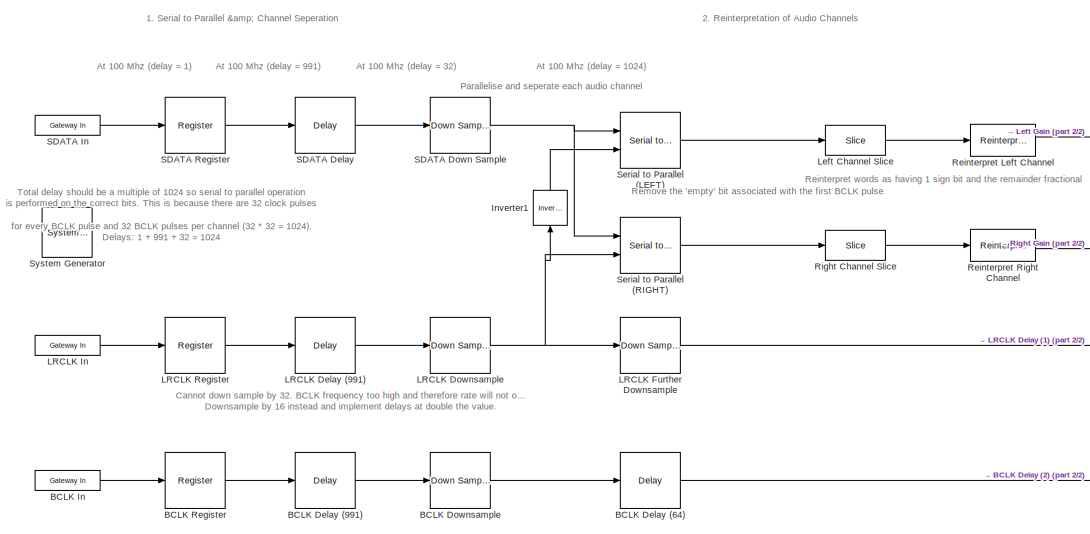
[diagram: root canvas - part 1/2, left side, full height]
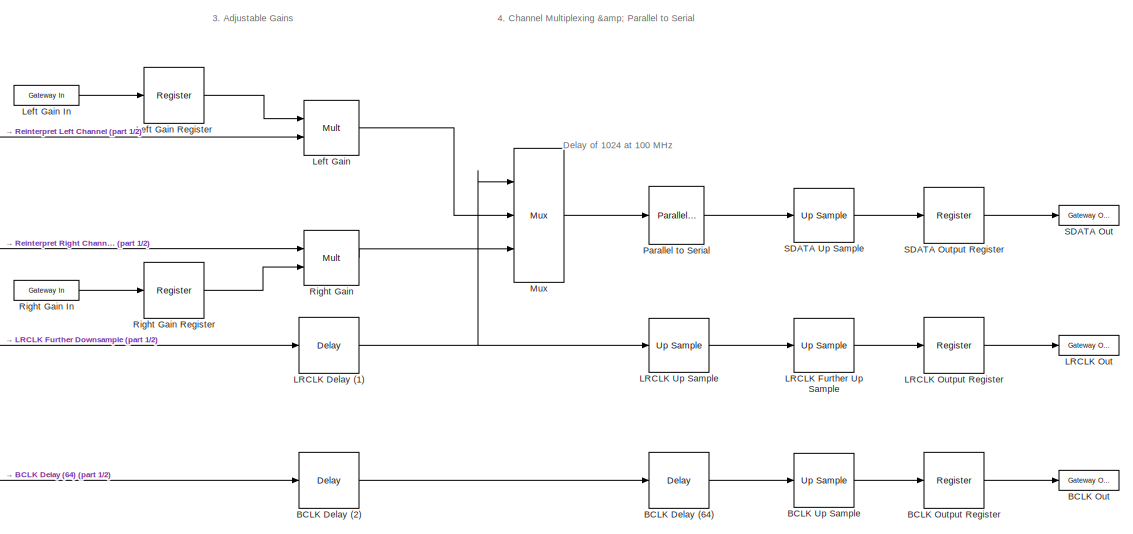
[diagram: root canvas - part 2/2, right side, full height]
MODEL slx_e5e542378b1a
KIND model
CONFIG AbsTol = auto
CONFIG EnableMultiTasking = off
CONFIG FixedStep = auto
CONFIG MaxStep = auto
CONFIG MinStep = auto
CONFIG RelTol = 1e-3
CONFIG SampleTimeConstraint = Unconstrained
CONFIG Solver = VariableStepAuto
CONFIG SolverName = VariableStepAuto
CONFIG StartTime = 0.0
CONFIG StopTime = 32000/100e6
BLOCK [Reference]  System Generator  REF=xbsIndex_r4/ System Generator
  AttributesFormatString = System\nGenerator
  Ports = []
  SourceBlock = xbsIndex_r4/ System Generator
  SourceType = Xilinx System Generator Block
  Tag = genX
  UserDataPersistent = on
BLOCK [Reference] BCLK Delay (2)  REF=xbsIndex_r4/Delay
  Ports = [1, 1]
  SourceBlock = xbsIndex_r4/Delay
  SourceType = Xilinx Delay Block
BLOCK [Reference] BCLK Delay (64)  REF=xbsIndex_r4/Delay
  Ports = [1, 1]
  SourceBlock = xbsIndex_r4/Delay
  SourceType = Xilinx Delay Block
BLOCK [Reference] BCLK Delay (64)   REF=xbsIndex_r4/Delay
  Ports = [1, 1]
  SourceBlock = xbsIndex_r4/Delay
  SourceType = Xilinx Delay Block
BLOCK [Reference] BCLK Delay (991)  REF=xbsIndex_r4/Delay
  Ports = [1, 1]
  SourceBlock = xbsIndex_r4/Delay
  SourceType = Xilinx Delay Block
BLOCK [Reference] BCLK Downsample  REF=xbsIndex_r4/Down Sample
  Ports = [1, 1]
  SourceBlock = xbsIndex_r4/Down Sample
  SourceType = Xilinx Down Sampler Block
BLOCK [Reference] BCLK In  REF=xbsIndex_r4/Gateway In
  Ports = [1, 1]
  SourceBlock = xbsIndex_r4/Gateway In
  SourceType = Xilinx Gateway In Block
BLOCK [Reference] BCLK Out  REF=xbsIndex_r4/Gateway Out
  Ports = [1, 1]
  SourceBlock = xbsIndex_r4/Gateway Out
  SourceType = Xilinx Gateway Out Block
BLOCK [Reference] BCLK Output Register  REF=xbsIndex_r4/Register
  Ports = [1, 1]
  SourceBlock = xbsIndex_r4/Register
  SourceType = Xilinx Register Block
BLOCK [Reference] BCLK Register  REF=xbsIndex_r4/Register
  Ports = [1, 1]
  SourceBlock = xbsIndex_r4/Register
  SourceType = Xilinx Register Block
BLOCK [Reference] BCLK Up Sample  REF=xbsIndex_r4/Up Sample
  Ports = [1, 1]
  SourceBlock = xbsIndex_r4/Up Sample
  SourceType = Xilinx Up Sampler Block
BLOCK [Reference] Inverter1  REF=xbsIndex_r4/Inverter
  NameLocation = right
  Ports = [1, 1]
  SourceBlock = xbsIndex_r4/Inverter
  SourceType = Xilinx Inverter Block
BLOCK [Reference] LRCLK Delay (1)  REF=xbsIndex_r4/Delay
  Ports = [1, 1]
  SourceBlock = xbsIndex_r4/Delay
  SourceType = Xilinx Delay Block
BLOCK [Reference] LRCLK Delay (991)  REF=xbsIndex_r4/Delay
  Ports = [1, 1]
  SourceBlock = xbsIndex_r4/Delay
  SourceType = Xilinx Delay Block
BLOCK [Reference] LRCLK Downsample  REF=xbsIndex_r4/Down Sample
  Ports = [1, 1]
  SourceBlock = xbsIndex_r4/Down Sample
  SourceType = Xilinx Down Sampler Block
BLOCK [Reference] LRCLK Further Downsample  REF=xbsIndex_r4/Down Sample
  Ports = [1, 1]
  SourceBlock = xbsIndex_r4/Down Sample
  SourceType = Xilinx Down Sampler Block
BLOCK [Reference] LRCLK Further Up Sample  REF=xbsIndex_r4/Up Sample
  Ports = [1, 1]
  SourceBlock = xbsIndex_r4/Up Sample
  SourceType = Xilinx Up Sampler Block
BLOCK [Reference] LRCLK In  REF=xbsIndex_r4/Gateway In
  Ports = [1, 1]
  SourceBlock = xbsIndex_r4/Gateway In
  SourceType = Xilinx Gateway In Block
BLOCK [Reference] LRCLK Out  REF=xbsIndex_r4/Gateway Out
  Ports = [1, 1]
  SourceBlock = xbsIndex_r4/Gateway Out
  SourceType = Xilinx Gateway Out Block
BLOCK [Reference] LRCLK Output Register  REF=xbsIndex_r4/Register
  Ports = [1, 1]
  SourceBlock = xbsIndex_r4/Register
  SourceType = Xilinx Register Block
BLOCK [Reference] LRCLK Register  REF=xbsIndex_r4/Register
  Ports = [1, 1]
  SourceBlock = xbsIndex_r4/Register
  SourceType = Xilinx Register Block
BLOCK [Reference] LRCLK Up Sample  REF=xbsIndex_r4/Up Sample
  Ports = [1, 1]
  SourceBlock = xbsIndex_r4/Up Sample
  SourceType = Xilinx Up Sampler Block
BLOCK [Reference] Left Channel Slice  REF=xbsIndex_r4/Slice
  Ports = [1, 1]
  SourceBlock = xbsIndex_r4/Slice
  SourceType = Xilinx Bit Slice Extractor Block
BLOCK [Reference] Left Gain  REF=xbsIndex_r4/Mult
  Ports = [2, 1]
  SourceBlock = xbsIndex_r4/Mult
  SourceType = Xilinx Multiplier Block
BLOCK [Reference] Left Gain In  REF=xbsIndex_r4/Gateway In
  Ports = [1, 1]
  SourceBlock = xbsIndex_r4/Gateway In
  SourceType = Xilinx Gateway In Block
BLOCK [Reference] Left Gain Register  REF=xbsIndex_r4/Register
  Ports = [1, 1]
  SourceBlock = xbsIndex_r4/Register
  SourceType = Xilinx Register Block
BLOCK [Reference] Mux  REF=xbsIndex_r4/Mux
  Ports = [3, 1]
  SourceBlock = xbsIndex_r4/Mux
  SourceType = Xilinx Bus Multiplexer Block
BLOCK [Reference] Parallel to Serial  REF=xbsIndex_r4/Parallel to Serial
  Ports = [1, 1]
  SourceBlock = xbsIndex_r4/Parallel to Serial
  SourceType = Xilinx Parallel to Serial Converter Block
BLOCK [Reference] Reinterpret Left Channel  REF=xbsIndex_r4/Reinterpret
  Ports = [1, 1]
  SourceBlock = xbsIndex_r4/Reinterpret
  SourceType = Xilinx Type Reinterpreter Block
BLOCK [Reference] Reinterpret Right Channel  REF=xbsIndex_r4/Reinterpret
  Ports = [1, 1]
  SourceBlock = xbsIndex_r4/Reinterpret
  SourceType = Xilinx Type Reinterpreter Block
BLOCK [Reference] Right Channel Slice  REF=xbsIndex_r4/Slice
  Ports = [1, 1]
  SourceBlock = xbsIndex_r4/Slice
  SourceType = Xilinx Bit Slice Extractor Block
BLOCK [Reference] Right Gain  REF=xbsIndex_r4/Mult
  Ports = [2, 1]
  SourceBlock = xbsIndex_r4/Mult
  SourceType = Xilinx Multiplier Block
BLOCK [Reference] Right Gain In  REF=xbsIndex_r4/Gateway In
  Ports = [1, 1]
  SourceBlock = xbsIndex_r4/Gateway In
  SourceType = Xilinx Gateway In Block
BLOCK [Reference] Right Gain Register  REF=xbsIndex_r4/Register
  Ports = [1, 1]
  SourceBlock = xbsIndex_r4/Register
  SourceType = Xilinx Register Block
BLOCK [Reference] SDATA Delay  REF=xbsIndex_r4/Delay
  Ports = [1, 1]
  SourceBlock = xbsIndex_r4/Delay
  SourceType = Xilinx Delay Block
BLOCK [Reference] SDATA Down Sample  REF=xbsIndex_r4/Down Sample
  Ports = [1, 1]
  SourceBlock = xbsIndex_r4/Down Sample
  SourceType = Xilinx Down Sampler Block
BLOCK [Reference] SDATA In  REF=xbsIndex_r4/Gateway In
  Ports = [1, 1]
  SourceBlock = xbsIndex_r4/Gateway In
  SourceType = Xilinx Gateway In Block
BLOCK [Reference] SDATA Out  REF=xbsIndex_r4/Gateway Out
  Ports = [1, 1]
  SourceBlock = xbsIndex_r4/Gateway Out
  SourceType = Xilinx Gateway Out Block
BLOCK [Reference] SDATA Output Register  REF=xbsIndex_r4/Register
  Ports = [1, 1]
  SourceBlock = xbsIndex_r4/Register
  SourceType = Xilinx Register Block
BLOCK [Reference] SDATA Register  REF=xbsIndex_r4/Register
  Ports = [1, 1]
  SourceBlock = xbsIndex_r4/Register
  SourceType = Xilinx Register Block
BLOCK [Reference] SDATA Up Sample  REF=xbsIndex_r4/Up Sample
  Ports = [1, 1]
  SourceBlock = xbsIndex_r4/Up Sample
  SourceType = Xilinx Up Sampler Block
BLOCK [Reference] Serial to Parallel (LEFT)  REF=xbsIndex_r4/Serial to Parallel
  Ports = [2, 1]
  SourceBlock = xbsIndex_r4/Serial to Parallel
  SourceType = Xilinx Serial to Parallel Converter Block
BLOCK [Reference] Serial to Parallel (RIGHT)  REF=xbsIndex_r4/Serial to Parallel
  Ports = [2, 1]
  SourceBlock = xbsIndex_r4/Serial to Parallel
  SourceType = Xilinx Serial to Parallel Converter Block
ANNOTATION (root): Cannot down sample by 32. BCLK frequency too high and therefore rate will not obey Nyquist. Downsample by 16 instead and implement delays at double the value.
ANNOTATION (root): Total delay should be a multiple of 1024 so serial to parallel operation is performed on the correct bits. This is because there are 32 clock pulses for every BCLK pulse and 32 BCLK pulses per channel (32 * 32 = 1024). Delays: 1 + 991 + 32 = 1024
ANNOTATION (root): Reinterpret words as having 1 sign bit and the remainder fractional
ANNOTATION (root): Remove the 'empty' bit associated with the first BCLK pulse
ANNOTATION (root): 1. Serial to Parallel & Channel Seperation
ANNOTATION (root): 2. Reinterpretation of Audio Channels
ANNOTATION (root): 3. Adjustable Gains
ANNOTATION (root): 4. Channel Multiplexing & Parallel to Serial
ANNOTATION (root): At 100 Mhz (delay = 1)
ANNOTATION (root): At 100 Mhz (delay = 1024)
ANNOTATION (root): At 100 Mhz (delay = 32)
ANNOTATION (root): At 100 Mhz (delay = 991)
ANNOTATION (root): Delay of 1024 at 100 MHz
ANNOTATION (root): Parallelise and seperate each audio channel
LINE BCLK Delay (2):1 -> BCLK Delay (64) :1
LINE BCLK Delay (64) :1 -> BCLK Up Sample:1
LINE BCLK Delay (64):1 -> BCLK Delay (2):1
LINE BCLK Delay (991):1 -> BCLK Downsample:1
LINE BCLK Downsample:1 -> BCLK Delay (64):1
LINE BCLK In:1 -> BCLK Register:1
LINE BCLK Output Register:1 -> BCLK Out:1
LINE BCLK Register:1 -> BCLK Delay (991):1
LINE BCLK Up Sample:1 -> BCLK Output Register:1
LINE Inverter1:1 -> Serial to Parallel (LEFT):2
NET LRCLK Delay (1):1 -> LRCLK Up Sample:1, Mux:1
LINE LRCLK Delay (991):1 -> LRCLK Downsample:1
NET LRCLK Downsample:1 -> Inverter1:1, LRCLK Further Downsample:1, Serial to Parallel (RIGHT):2
LINE LRCLK Further Downsample:1 -> LRCLK Delay (1):1
LINE LRCLK Further Up Sample:1 -> LRCLK Output Register:1
LINE LRCLK In:1 -> LRCLK Register:1
LINE LRCLK Output Register:1 -> LRCLK Out:1
LINE LRCLK Register:1 -> LRCLK Delay (991):1
LINE LRCLK Up Sample:1 -> LRCLK Further Up Sample:1
LINE Left Channel Slice:1 -> Reinterpret Left Channel:1
LINE Left Gain In:1 -> Left Gain Register:1
LINE Left Gain Register:1 -> Left Gain:1
LINE Left Gain:1 -> Mux:2
LINE Mux:1 -> Parallel to Serial:1
LINE Parallel to Serial:1 -> SDATA Up Sample:1
LINE Reinterpret Left Channel:1 -> Left Gain:2
LINE Reinterpret Right Channel:1 -> Right Gain:1
LINE Right Channel Slice:1 -> Reinterpret Right Channel:1
LINE Right Gain In:1 -> Right Gain Register:1
LINE Right Gain Register:1 -> Right Gain:2
LINE Right Gain:1 -> Mux:3
LINE SDATA Delay:1 -> SDATA Down Sample:1
NET SDATA Down Sample:1 -> Serial to Parallel (LEFT):1, Serial to Parallel (RIGHT):1
LINE SDATA In:1 -> SDATA Register:1
LINE SDATA Output Register:1 -> SDATA Out:1
LINE SDATA Register:1 -> SDATA Delay:1
LINE SDATA Up Sample:1 -> SDATA Output Register:1
LINE Serial to Parallel (LEFT):1 -> Left Channel Slice:1
LINE Serial to Parallel (RIGHT):1 -> Right Channel Slice:1
note: NET lines group one-source signal fan-out (src -> all destinations, sorted); 1:1 wires keep LINE
